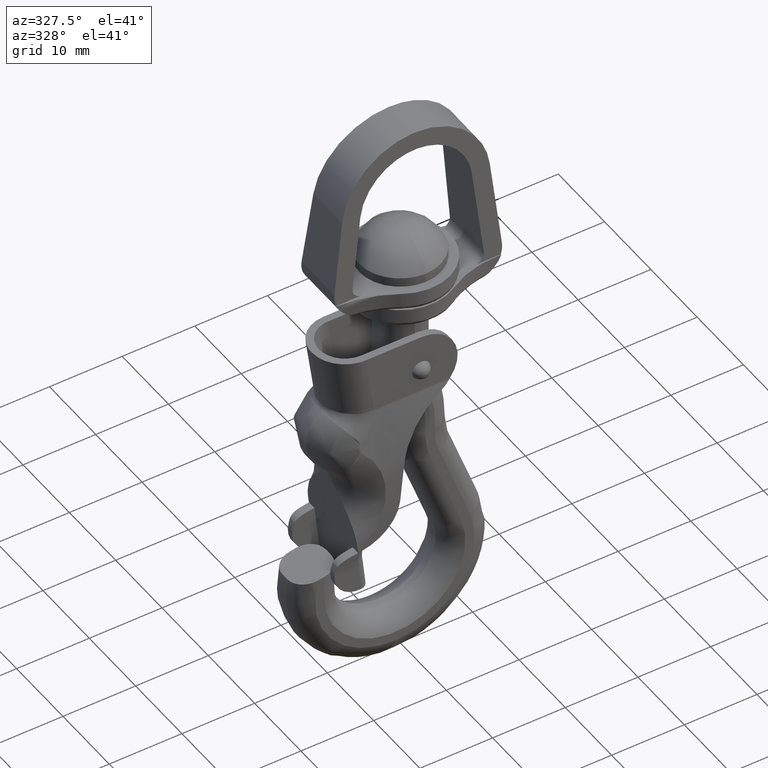
[diagram: clean part render]
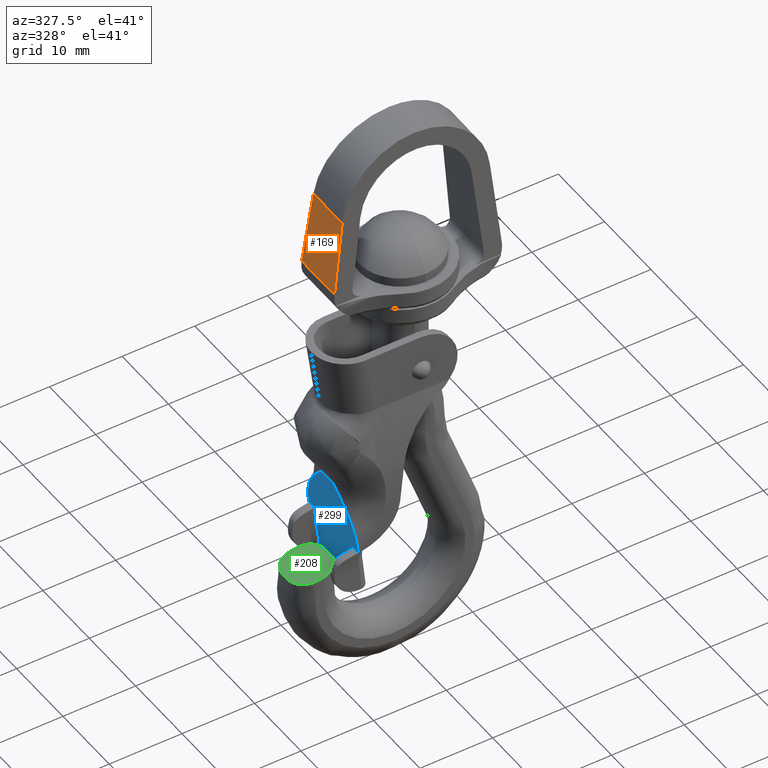
[diagram: same view with three faces highlighted in distinct colors, each labeled with its STEP entity id]
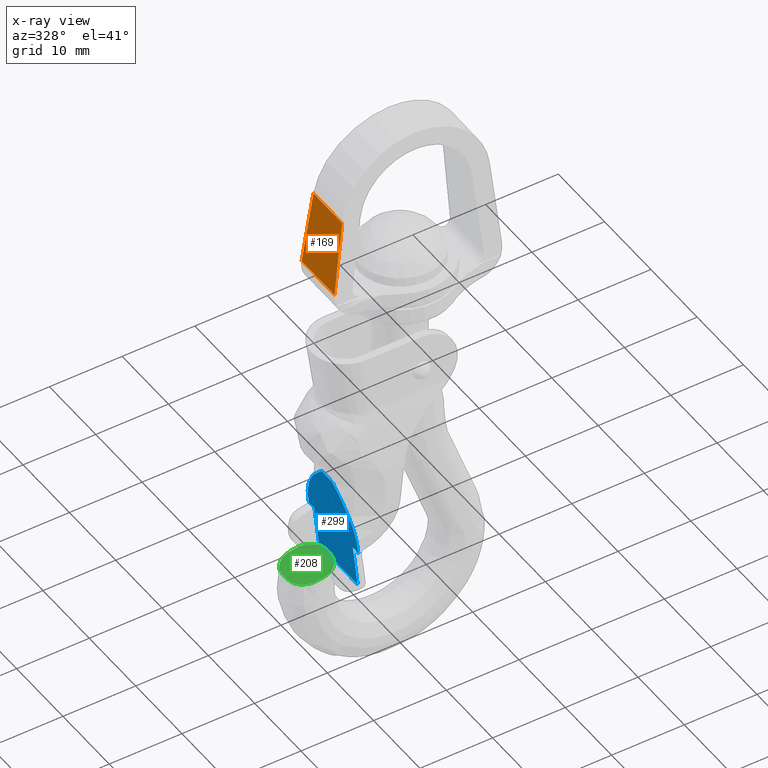
[diagram: x-ray of the same camera — body ghosted, the three highlighted faces saturated]
A machine part, auxiliary view with three faces highlighted in distinct colors.
The next image is the same camera in x-ray (body ghosted, the three faces saturated) — at least one of them is partly hidden behind the body in this view.
Their STEP definitions:

[orange] entity #169 — the highlighted planar face has unit normal (-0.9913, 0, 0.1316).
#169=ADVANCED_FACE('',(#514),#513,.T.);
#513=PLANE('',#2096);
#514=FACE_OUTER_BOUND('',#2097,.T.);
#2093=CARTESIAN_POINT('',(-1.14077956443E+01,-4.25314896025E+00,5.75841111475E+00));
#2094=DIRECTION('',(-9.91304695876E-01,0.00000000000E+00,1.31586473222E-01));
#2095=DIRECTION('',(1.31586473222E-01,0.00000000000E+00,9.91304695876E-01));
#2096=AXIS2_PLACEMENT_3D('',#2093,#2094,#2095);
#2097=EDGE_LOOP('',(#4109,#4110,#4111,#4112));
#4109=ORIENTED_EDGE('',*,*,#4898,.F.);
#4110=ORIENTED_EDGE('',*,*,#4924,.F.);
#4111=ORIENTED_EDGE('',*,*,#4909,.F.);
#4112=ORIENTED_EDGE('',*,*,#4923,.T.);
#4898=EDGE_CURVE('',#5672,#5679,#5680,.T.);
#4909=EDGE_CURVE('',#5748,#5755,#5756,.T.);
#4923=EDGE_CURVE('',#5748,#5679,#5843,.T.);
#4924=EDGE_CURVE('',#5755,#5672,#5849,.T.);
#5672=VERTEX_POINT('',#8396);
#5679=VERTEX_POINT('',#8400);
#5680=LINE('',#8401,#8402);
#5748=VERTEX_POINT('',#8441);
#5755=VERTEX_POINT('',#8445);
#5756=LINE('',#8446,#8447);
#5843=LINE('',#8502,#8503);
#5849=LINE('',#8505,#8506);
#8396=CARTESIAN_POINT('',(-1.12741993124E+01,3.54429080021E+00,6.76485705006E+00));
#8400=CARTESIAN_POINT('',(-9.93823599392E+00,3.10844591789E+00,1.68293164031E+01));
#8401=CARTESIAN_POINT('',(-1.12741993124E+01,3.54429080021E+00,6.76485705006E+00));
#8402=VECTOR('',#8403,1.01620913605E+01);
#8403=DIRECTION('',(1.31465391435E-01,-4.28892898969E-02,9.90392528075E-01));
#8441=CARTESIAN_POINT('',(-9.93823599392E+00,-3.10844591789E+00,1.68293164031E+01));
#8445=CARTESIAN_POINT('',(-1.12741993124E+01,-3.54429080021E+00,6.76485705006E+00));
#8446=CARTESIAN_POINT('',(-9.93823599392E+00,-3.10844591789E+00,1.68293164031E+01));
#8447=VECTOR('',#8448,1.01620913605E+01);
#8448=DIRECTION('',(-1.31465391435E-01,-4.28892898970E-02,-9.90392528075E-01));
#8502=CARTESIAN_POINT('',(-9.93823599392E+00,-3.10844591789E+00,1.68293164031E+01));
#8503=VECTOR('',#8504,6.21689183578E+00);
#8504=DIRECTION('',(0.00000000000E+00,1.00000000000E+00,0.00000000000E+00));
#8505=CARTESIAN_POINT('',(-1.12741993124E+01,-3.54429080021E+00,6.76485705006E+00));
#8506=VECTOR('',#8507,7.08858160042E+00);
#8507=DIRECTION('',(0.00000000000E+00,1.00000000000E+00,0.00000000000E+00));

[blue] entity #299 — the highlighted planar face has unit normal (-0.9939, 0, -0.1104).
#299=ADVANCED_FACE('',(#1819),#1818,.T.);
#1818=PLANE('',#3823);
#1819=FACE_OUTER_BOUND('',#3824,.T.);
#3820=CARTESIAN_POINT('',(-8.30834167202E+00,-6.45410401549E+00,-3.08090519360E+01));
#3821=DIRECTION('',(-9.93883734674E-01,0.00000000000E+00,-1.10431526075E-01));
#3822=DIRECTION('',(-1.10431526075E-01,0.00000000000E+00,9.93883734674E-01));
#3823=AXIS2_PLACEMENT_3D('',#3820,#3821,#3822);
#3824=EDGE_LOOP('',(#4783,#4784,#4785,#4786,#4787,#4788,#4789,#4790,#4791,#4792));
#4783=ORIENTED_EDGE('',*,*,#5247,.T.);
#4784=ORIENTED_EDGE('',*,*,#5104,.T.);
#4785=ORIENTED_EDGE('',*,*,#5101,.T.);
#4786=ORIENTED_EDGE('',*,*,#5098,.T.);
#4787=ORIENTED_EDGE('',*,*,#5253,.T.);
#4788=ORIENTED_EDGE('',*,*,#5229,.F.);
#4789=ORIENTED_EDGE('',*,*,#5163,.F.);
#4790=ORIENTED_EDGE('',*,*,#5069,.F.);
#4791=ORIENTED_EDGE('',*,*,#5164,.T.);
#4792=ORIENTED_EDGE('',*,*,#5151,.F.);
#5069=EDGE_CURVE('',#6800,#6807,#6808,.T.);
#5098=EDGE_CURVE('',#7004,#7005,#7006,.T.);
#5101=EDGE_CURVE('',#7024,#7004,#7025,.T.);
#5104=EDGE_CURVE('',#7044,#7024,#7045,.T.);
#5151=EDGE_CURVE('',#7362,#7363,#7364,.T.);
#5163=EDGE_CURVE('',#6807,#7432,#7446,.T.);
#5164=EDGE_CURVE('',#6800,#7363,#7452,.T.);
#5229=EDGE_CURVE('',#7432,#7877,#7878,.T.);
#5247=EDGE_CURVE('',#7362,#7044,#7990,.T.);
#5253=EDGE_CURVE('',#7005,#7877,#8027,.T.);
#6800=VERTEX_POINT('',#9213);
#6807=VERTEX_POINT('',#9218);
#6808=LINE('',#9219,#9220);
#7004=VERTEX_POINT('',#9412);
#7005=VERTEX_POINT('',#9413);
#7006=(BOUNDED_CURVE() B_SPLINE_CURVE(3,(#9414,#9415,#9416,#9417,#9418,#9419,#9420,#9421,#9422,#9423,#9424,#9425,#9426,#9427,#9428,#9429,#9430,#9431),.UNSPECIFIED.,.F.,.F.) B_SPLINE_CURVE_WITH_KNOTS((4,2,2,2,2,2,2,2,4),(-9.41679707937E-03,-8.82824726191E-03,-8.23969744445E-03,-7.06259780953E-03,-5.88549817460E-03,-4.70839853968E-03,-2.35419926984E-03,-1.17709963492E-03,-3.46944695195E-18),.UNSPECIFIED.) CURVE() GEOMETRIC_REPRESENTATION_ITEM() RATIONAL_B_SPLINE_CURVE((1.00000000000E+00,1.00000000000E+00,1.00000000000E+00,1.00000000000E+00,1.00000000000E+00,1.00000000000E+00,1.00000000000E+00,1.00000000000E+00,1.00000000000E+00,1.00000000000E+00,1.00000000000E+00,1.00000000000E+00,1.00000000000E+00,1.00000000000E+00,1.00000000000E+00,1.00000000000E+00,1.00000000000E+00,1.00000000000E+00)) REPRESENTATION_ITEM('') );
#7024=VERTEX_POINT('',#9460);
#7025=LINE('',#9461,#9462);
#7044=VERTEX_POINT('',#9478);
#7045=(BOUNDED_CURVE() B_SPLINE_CURVE(3,(#9479,#9480,#9481,#9482,#9483,#9484,#9485,#9486,#9487,#9488,#9489,#9490,#9491,#9492,#9493,#9494,#9495,#9496),.UNSPECIFIED.,.F.,.F.) B_SPLINE_CURVE_WITH_KNOTS((4,2,2,2,2,2,2,2,4),(2.09607435117E-17,1.17709963492E-03,2.35419926984E-03,4.70839853968E-03,5.88549817460E-03,7.06259780953E-03,8.23969744445E-03,8.82824726191E-03,9.41679707937E-03),.UNSPECIFIED.) CURVE() GEOMETRIC_REPRESENTATION_ITEM() RATIONAL_B_SPLINE_CURVE((1.00000000000E+00,1.00000000000E+00,1.00000000000E+00,1.00000000000E+00,1.00000000000E+00,1.00000000000E+00,1.00000000000E+00,1.00000000000E+00,1.00000000000E+00,1.00000000000E+00,1.00000000000E+00,1.00000000000E+00,1.00000000000E+00,1.00000000000E+00,1.00000000000E+00,1.00000000000E+00,1.00000000000E+00,1.00000000000E+00)) REPRESENTATION_ITEM('') );
#7362=VERTEX_POINT('',#9819);
#7363=VERTEX_POINT('',#9820);
#7364=LINE('',#9821,#9822);
#7432=VERTEX_POINT('',#9901);
#7446=LINE('',#9925,#9926);
#7452=LINE('',#9928,#9929);
#7877=VERTEX_POINT('',#10320);
#7878=LINE('',#10321,#10322);
#7990=(BOUNDED_CURVE() B_SPLINE_CURVE(2,(#10427,#10428,#10429),.UNSPECIFIED.,.F.,.F.) B_SPLINE_CURVE_WITH_KNOTS((3,3),(4.61377028065E+00,4.61651534686E+00),.UNSPECIFIED.) CURVE() GEOMETRIC_REPRESENTATION_ITEM() RATIONAL_B_SPLINE_CURVE((1.00000000000E+00,9.99999058077E-01,1.00000000000E+00)) REPRESENTATION_ITEM('') );
#8027=(BOUNDED_CURVE() B_SPLINE_CURVE(2,(#10470,#10471,#10472),.UNSPECIFIED.,.F.,.F.) B_SPLINE_CURVE_WITH_KNOTS((3,3),(1.66666996032E+00,1.66941502653E+00),.UNSPECIFIED.) CURVE() GEOMETRIC_REPRESENTATION_ITEM() RATIONAL_B_SPLINE_CURVE((1.00000000000E+00,9.99999058077E-01,1.00000000000E+00)) REPRESENTATION_ITEM('') );
#9213=CARTESIAN_POINT('',(-8.46733439055E+00,-4.13340352579E+00,-2.93781174692E+01));
#9218=CARTESIAN_POINT('',(-8.46733439055E+00,4.14278695040E+00,-2.93781174692E+01));
#9219=CARTESIAN_POINT('',(-8.46733439055E+00,-4.13340352579E+00,-2.93781174692E+01));
#9220=VECTOR('',#9221,8.27619047619E+00);
#9221=DIRECTION('',(0.00000000000E+00,1.00000000000E+00,0.00000000000E+00));
#9412=CARTESIAN_POINT('',(-1.00572615758E+01,1.16901623373E+00,-1.50687728018E+01));
#9413=CARTESIAN_POINT('',(-9.15937109018E+00,5.34047916499E+00,-2.31497871726E+01));
#9414=CARTESIAN_POINT('',(-1.00572615758E+01,1.16901623373E+00,-1.50687728018E+01));
#9415=CARTESIAN_POINT('',(-1.00423475810E+01,1.31131466160E+00,-1.52029987553E+01));
#9416=CARTESIAN_POINT('',(-1.00270904342E+01,1.45531307912E+00,-1.53403130768E+01));
#9417=CARTESIAN_POINT('',(-9.99654205216E+00,1.73830174198E+00,-1.56152485147E+01));
#9418=CARTESIAN_POINT('',(-9.98112782063E+00,1.87850404537E+00,-1.57539765985E+01));
#9419=CARTESIAN_POINT('',(-9.93431923876E+00,2.29389002291E+00,-1.61752538353E+01));
#9420=CARTESIAN_POINT('',(-9.90231973937E+00,2.56413272110E+00,-1.64632493299E+01));
#9421=CARTESIAN_POINT('',(-9.83626990471E+00,3.08264525835E+00,-1.70576978418E+01));
#9422=CARTESIAN_POINT('',(-9.80227911173E+00,3.33052047184E+00,-1.73636149786E+01));
#9423=CARTESIAN_POINT('',(-9.73181342134E+00,3.79700033015E+00,-1.79978061921E+01));
#9424=CARTESIAN_POINT('',(-9.69517955406E+00,4.01640560975E+00,-1.83275109976E+01));
#9425=CARTESIAN_POINT('',(-9.58233747508E+00,4.61160449634E+00,-1.93430897085E+01));
#9426=CARTESIAN_POINT('',(-9.50311798951E+00,4.92783319662E+00,-2.00560650786E+01));
#9427=CARTESIAN_POINT('',(-9.37590934171E+00,5.23303035137E+00,-2.12009429088E+01));
#9428=CARTESIAN_POINT('',(-9.33296259966E+00,5.30382784548E+00,-2.15874635873E+01));
#9429=CARTESIAN_POINT('',(-9.24667055558E+00,5.37629732186E+00,-2.23640919839E+01));
#9430=CARTESIAN_POINT('',(-9.20320718240E+00,5.37842001291E+00,-2.27552623425E+01));
#9431=CARTESIAN_POINT('',(-9.15937109018E+00,5.34047916499E+00,-2.31497871726E+01));
#9460=CARTESIAN_POINT('',(-1.00572615758E+01,-1.16901623373E+00,-1.50687728018E+01));
#9461=CARTESIAN_POINT('',(-1.00572615758E+01,-1.16901623373E+00,-1.50687728018E+01));
#9462=VECTOR('',#9463,2.33803246746E+00);
#9463=DIRECTION('',(0.00000000000E+00,1.00000000000E+00,0.00000000000E+00));
#9478=CARTESIAN_POINT('',(-9.15937109018E+00,-5.34047916500E+00,-2.31497871726E+01));
#9479=CARTESIAN_POINT('',(-9.15937109018E+00,-5.34047916500E+00,-2.31497871726E+01));
#9480=CARTESIAN_POINT('',(-9.20320718240E+00,-5.37842001291E+00,-2.27552623425E+01));
#9481=CARTESIAN_POINT('',(-9.24667055558E+00,-5.37629732186E+00,-2.23640919839E+01));
#9482=CARTESIAN_POINT('',(-9.33296259966E+00,-5.30382784548E+00,-2.15874635873E+01));
#9483=CARTESIAN_POINT('',(-9.37590934171E+00,-5.23303035137E+00,-2.12009429088E+01));
#9484=CARTESIAN_POINT('',(-9.50311798951E+00,-4.92783319662E+00,-2.00560650786E+01));
#9485=CARTESIAN_POINT('',(-9.58233747508E+00,-4.61160449634E+00,-1.93430897085E+01));
#9486=CARTESIAN_POINT('',(-9.69517955406E+00,-4.01640560975E+00,-1.83275109976E+01));
#9487=CARTESIAN_POINT('',(-9.73181342134E+00,-3.79700033015E+00,-1.79978061921E+01));
#9488=CARTESIAN_POINT('',(-9.80227911173E+00,-3.33052047184E+00,-1.73636149786E+01));
#9489=CARTESIAN_POINT('',(-9.83626990471E+00,-3.08264525835E+00,-1.70576978418E+01));
#9490=CARTESIAN_POINT('',(-9.90231973937E+00,-2.56413272110E+00,-1.64632493299E+01));
#9491=CARTESIAN_POINT('',(-9.93431923876E+00,-2.29389002291E+00,-1.61752538353E+01));
#9492=CARTESIAN_POINT('',(-9.98112782063E+00,-1.87850404537E+00,-1.57539765985E+01));
#9493=CARTESIAN_POINT('',(-9.99654205216E+00,-1.73830174198E+00,-1.56152485147E+01));
#9494=CARTESIAN_POINT('',(-1.00270904342E+01,-1.45531307912E+00,-1.53403130768E+01));
#9495=CARTESIAN_POINT('',(-1.00423475810E+01,-1.31131466160E+00,-1.52029987553E+01));
#9496=CARTESIAN_POINT('',(-1.00572615758E+01,-1.16901623373E+00,-1.50687728018E+01));
#9819=CARTESIAN_POINT('',(-9.13669485151E+00,-5.32056977000E+00,-2.33538733206E+01));
#9820=CARTESIAN_POINT('',(-9.13669485151E+00,-4.13340352579E+00,-2.33538733206E+01));
#9821=CARTESIAN_POINT('',(-9.13669485151E+00,-5.32056977000E+00,-2.33538733206E+01));
#9822=VECTOR('',#9823,1.18716624421E+00);
#9823=DIRECTION('',(0.00000000000E+00,1.00000000000E+00,0.00000000000E+00));
#9901=CARTESIAN_POINT('',(-9.13669485151E+00,4.14278695040E+00,-2.33538733206E+01));
#9925=CARTESIAN_POINT('',(-8.46733439055E+00,4.14278695040E+00,-2.93781174692E+01));
#9926=VECTOR('',#9927,6.06131677021E+00);
#9927=DIRECTION('',(-1.10431526075E-01,0.00000000000E+00,9.93883734674E-01));
#9928=CARTESIAN_POINT('',(-8.46733439055E+00,-4.13340352579E+00,-2.93781174692E+01));
#9929=VECTOR('',#9930,6.06131677021E+00);
#9930=DIRECTION('',(-1.10431526075E-01,0.00000000000E+00,9.93883734674E-01));
#10320=CARTESIAN_POINT('',(-9.13669485151E+00,5.32056977000E+00,-2.33538733206E+01));
#10321=CARTESIAN_POINT('',(-9.13669485151E+00,4.14278695040E+00,-2.33538733206E+01));
#10322=VECTOR('',#10323,1.17778281960E+00);
#10323=DIRECTION('',(0.00000000000E+00,1.00000000000E+00,0.00000000000E+00));
#10427=CARTESIAN_POINT('',(-9.13669485151E+00,-5.32056977000E+00,-2.33538733206E+01));
#10428=CARTESIAN_POINT('',(-9.14803145271E+00,-5.33066452508E+00,-2.32518439098E+01));
#10429=CARTESIAN_POINT('',(-9.15937109018E+00,-5.34047916500E+00,-2.31497871726E+01));
#10470=CARTESIAN_POINT('',(-9.15937109018E+00,5.34047916499E+00,-2.31497871726E+01));
#10471=CARTESIAN_POINT('',(-9.14803145271E+00,5.33066452508E+00,-2.32518439098E+01));
#10472=CARTESIAN_POINT('',(-9.13669485151E+00,5.32056977000E+00,-2.33538733206E+01));

[green] entity #208 — the highlighted planar face has unit normal (-0.1664, 0, 0.9861).
#208=ADVANCED_FACE('',(#904),#903,.T.);
#903=PLANE('',#2554);
#904=FACE_OUTER_BOUND('',#2555,.T.);
#2551=CARTESIAN_POINT('',(-1.64354726056E+01,-3.66000000000E+00,-2.78763877615E+01));
#2552=DIRECTION('',(-1.66400519461E-01,0.00000000000E+00,9.86058247328E-01));
#2553=DIRECTION('',(9.86058247328E-01,0.00000000000E+00,1.66400519461E-01));
#2554=AXIS2_PLACEMENT_3D('',#2551,#2552,#2553);
#2555=EDGE_LOOP('',(#4304,#4305,#4306,#4307,#4308,#4309,#4310,#4311));
#4304=ORIENTED_EDGE('',*,*,#5022,.F.);
#4305=ORIENTED_EDGE('',*,*,#4980,.T.);
#4306=ORIENTED_EDGE('',*,*,#4986,.T.);
#4307=ORIENTED_EDGE('',*,*,#4960,.T.);
#4308=ORIENTED_EDGE('',*,*,#5020,.T.);
#4309=ORIENTED_EDGE('',*,*,#5023,.T.);
#4310=ORIENTED_EDGE('',*,*,#4995,.F.);
#4311=ORIENTED_EDGE('',*,*,#4939,.T.);
#4939=EDGE_CURVE('',#5942,#5943,#5944,.T.);
#4960=EDGE_CURVE('',#6086,#6087,#6088,.T.);
#4980=EDGE_CURVE('',#6221,#6222,#6223,.T.);
#4986=EDGE_CURVE('',#6222,#6086,#6261,.T.);
#4995=EDGE_CURVE('',#5942,#6322,#6323,.T.);
#5020=EDGE_CURVE('',#6087,#6489,#6490,.T.);
#5022=EDGE_CURVE('',#6221,#5943,#6502,.T.);
#5023=EDGE_CURVE('',#6489,#6322,#6508,.T.);
#5942=VERTEX_POINT('',#8577);
#5943=VERTEX_POINT('',#8578);
#5944=(BOUNDED_CURVE() B_SPLINE_CURVE(3,(#8579,#8580,#8581,#8582,#8583,#8584,#8585,#8586,#8587,#8588,#8589,#8590,#8591,#8592),.UNSPECIFIED.,.F.,.F.) B_SPLINE_CURVE_WITH_KNOTS((4,2,2,2,2,2,4),(5.27595548005E-18,1.02409367028E-03,2.04818734057E-03,2.56023417571E-03,3.07228101085E-03,3.58432784599E-03,4.09637468113E-03),.UNSPECIFIED.) CURVE() GEOMETRIC_REPRESENTATION_ITEM() RATIONAL_B_SPLINE_CURVE((1.00000000000E+00,1.00000000000E+00,1.00000000000E+00,1.00000000000E+00,1.00000000000E+00,1.00000000000E+00,1.00000000000E+00,1.00000000000E+00,1.00000000000E+00,1.00000000000E+00,1.00000000000E+00,1.00000000000E+00,1.00000000000E+00,1.00000000000E+00)) REPRESENTATION_ITEM('') );
#6086=VERTEX_POINT('',#8707);
#6087=VERTEX_POINT('',#8708);
#6088=(BOUNDED_CURVE() B_SPLINE_CURVE(2,(#8709,#8710,#8711),.UNSPECIFIED.,.F.,.F.) B_SPLINE_CURVE_WITH_KNOTS((3,3),(4.71238898038E+00,6.28318530718E+00),.UNSPECIFIED.) CURVE() GEOMETRIC_REPRESENTATION_ITEM() RATIONAL_B_SPLINE_CURVE((1.00000000000E+00,7.07106781187E-01,1.00000000000E+00)) REPRESENTATION_ITEM('') );
#6221=VERTEX_POINT('',#8804);
#6222=VERTEX_POINT('',#8805);
#6223=(BOUNDED_CURVE() B_SPLINE_CURVE(3,(#8806,#8807,#8808,#8809,#8810,#8811,#8812,#8813,#8814,#8815,#8816,#8817,#8818,#8819,#8820,#8821),.UNSPECIFIED.,.F.,.F.) B_SPLINE_CURVE_WITH_KNOTS((4,2,2,2,2,2,2,4),(0.00000000000E+00,5.12076622366E-04,1.02415324473E-03,2.04830648946E-03,2.56038311183E-03,3.07245973420E-03,3.58453635656E-03,4.09661297893E-03),.UNSPECIFIED.) CURVE() GEOMETRIC_REPRESENTATION_ITEM() RATIONAL_B_SPLINE_CURVE((1.00000000000E+00,1.00000000000E+00,1.00000000000E+00,1.00000000000E+00,1.00000000000E+00,1.00000000000E+00,1.00000000000E+00,1.00000000000E+00,1.00000000000E+00,1.00000000000E+00,1.00000000000E+00,1.00000000000E+00,1.00000000000E+00,1.00000000000E+00,1.00000000000E+00,1.00000000000E+00)) REPRESENTATION_ITEM('') );
#6261=LINE('',#8843,#8844);
#6322=VERTEX_POINT('',#8882);
#6323=LINE('',#8883,#8884);
#6489=VERTEX_POINT('',#8982);
#6490=LINE('',#8983,#8984);
#6502=LINE('',#8989,#8990);
#6508=(BOUNDED_CURVE() B_SPLINE_CURVE(2,(#8992,#8993,#8994),.UNSPECIFIED.,.F.,.F.) B_SPLINE_CURVE_WITH_KNOTS((3,3),(3.14159265359E+00,4.71238898038E+00),.UNSPECIFIED.) CURVE() GEOMETRIC_REPRESENTATION_ITEM() RATIONAL_B_SPLINE_CURVE((1.00000000000E+00,7.07106781187E-01,1.00000000000E+00)) REPRESENTATION_ITEM('') );
#8577=CARTESIAN_POINT('',(-1.31415325735E+01,3.05000000000E+00,-2.73205247241E+01));
#8578=CARTESIAN_POINT('',(-1.58370192728E+01,5.50000000000E-01,-2.77753968254E+01));
#8579=CARTESIAN_POINT('',(-1.31415325735E+01,3.05000000000E+00,-2.73205247241E+01));
#8580=CARTESIAN_POINT('',(-1.34827275433E+01,3.05000000000E+00,-2.73781024791E+01));
#8581=CARTESIAN_POINT('',(-1.38158678099E+01,2.99406578848E+00,-2.74343209769E+01));
#8582=CARTESIAN_POINT('',(-1.44580725842E+01,2.76192944188E+00,-2.75426951103E+01));
#8583=CARTESIAN_POINT('',(-1.47512916971E+01,2.59118930688E+00,-2.75921767843E+01));
#8584=CARTESIAN_POINT('',(-1.51359627043E+01,2.24994601026E+00,-2.76570912613E+01));
#8585=CARTESIAN_POINT('',(-1.52510213052E+01,2.12521848819E+00,-2.76765077725E+01));
#8586=CARTESIAN_POINT('',(-1.54546478348E+01,1.85367004312E+00,-2.77108704081E+01));
#8587=CARTESIAN_POINT('',(-1.55441023084E+01,1.70475728423E+00,-2.77259661400E+01));
#8588=CARTESIAN_POINT('',(-1.56881494445E+01,1.39352760561E+00,-2.77502745602E+01));
#8589=CARTESIAN_POINT('',(-1.57429735852E+01,1.23207570175E+00,-2.77595263113E+01));
#8590=CARTESIAN_POINT('',(-1.58176062312E+01,8.97288444529E-01,-2.77721208118E+01));
#8591=CARTESIAN_POINT('',(-1.58370192728E+01,7.23558851340E-01,-2.77753968254E+01));
#8592=CARTESIAN_POINT('',(-1.58370192728E+01,5.50000000000E-01,-2.77753968254E+01));
#8707=CARTESIAN_POINT('',(-1.23524859458E+01,-3.05000000000E+00,-2.71873705528E+01));
#8708=CARTESIAN_POINT('',(-9.85248594577E+00,-5.50000000000E-01,-2.67654874645E+01));
#8709=CARTESIAN_POINT('',(-1.23524859458E+01,-3.05000000000E+00,-2.71873705528E+01));
#8710=CARTESIAN_POINT('',(-9.85248594577E+00,-3.05000000000E+00,-2.67654874645E+01));
#8711=CARTESIAN_POINT('',(-9.85248594577E+00,-5.50000000000E-01,-2.67654874645E+01));
#8804=CARTESIAN_POINT('',(-1.58370192728E+01,-5.50000000000E-01,-2.77753968254E+01));
#8805=CARTESIAN_POINT('',(-1.31415325735E+01,-3.05000000000E+00,-2.73205247241E+01));
#8806=CARTESIAN_POINT('',(-1.58370192728E+01,-5.50000000000E-01,-2.77753968254E+01));
#8807=CARTESIAN_POINT('',(-1.58370192728E+01,-7.23216848261E-01,-2.77753968254E+01));
#8808=CARTESIAN_POINT('',(-1.58181667948E+01,-8.93133241771E-01,-2.77722154087E+01));
#8809=CARTESIAN_POINT('',(-1.57445327206E+01,-1.22667601064E+00,-2.77597894205E+01));
#8810=CARTESIAN_POINT('',(-1.56887036492E+01,-1.39192909332E+00,-2.77503680840E+01));
#8811=CARTESIAN_POINT('',(-1.54739497999E+01,-1.85712339723E+00,-2.77141276772E+01));
#8812=CARTESIAN_POINT('',(-1.52633106978E+01,-2.13648403010E+00,-2.76785816472E+01));
#8813=CARTESIAN_POINT('',(-1.48830682504E+01,-2.47453227447E+00,-2.76144145040E+01));
#8814=CARTESIAN_POINT('',(-1.47436529186E+01,-2.57568649257E+00,-2.75908877157E+01));
#8815=CARTESIAN_POINT('',(-1.44508847413E+01,-2.74814251739E+00,-2.75414821386E+01));
#8816=CARTESIAN_POINT('',(-1.42978987924E+01,-2.81971149943E+00,-2.75156652648E+01));
#8817=CARTESIAN_POINT('',(-1.39794132877E+01,-2.93506375769E+00,-2.74619198054E+01));
#8818=CARTESIAN_POINT('',(-1.38134605150E+01,-2.97861541439E+00,-2.74339147381E+01));
#8819=CARTESIAN_POINT('',(-1.34804000107E+01,-3.03578815296E+00,-2.73777097005E+01));
#8820=CARTESIAN_POINT('',(-1.33119267848E+01,-3.05000000000E+00,-2.73492792985E+01));
#8821=CARTESIAN_POINT('',(-1.31415325735E+01,-3.05000000000E+00,-2.73205247241E+01));
#8843=CARTESIAN_POINT('',(-1.31415325735E+01,-3.05000000000E+00,-2.73205247241E+01));
#8844=VECTOR('',#8845,8.00202858086E-01);
#8845=DIRECTION('',(9.86058247328E-01,0.00000000000E+00,1.66400519461E-01));
#8882=CARTESIAN_POINT('',(-1.23524859458E+01,3.05000000000E+00,-2.71873705528E+01));
#8883=CARTESIAN_POINT('',(-1.31415325735E+01,3.05000000000E+00,-2.73205247241E+01));
#8884=VECTOR('',#8885,8.00202858086E-01);
#8885=DIRECTION('',(9.86058247328E-01,0.00000000000E+00,1.66400519461E-01));
#8982=CARTESIAN_POINT('',(-9.85248594577E+00,5.50000000000E-01,-2.67654874645E+01));
#8983=CARTESIAN_POINT('',(-9.85248594577E+00,-5.50000000000E-01,-2.67654874645E+01));
#8984=VECTOR('',#8985,1.10000000000E+00);
#8985=DIRECTION('',(0.00000000000E+00,1.00000000000E+00,0.00000000000E+00));
#8989=CARTESIAN_POINT('',(-1.58370192728E+01,-5.50000000000E-01,-2.77753968254E+01));
#8990=VECTOR('',#8991,1.10000000000E+00);
#8991=DIRECTION('',(0.00000000000E+00,1.00000000000E+00,0.00000000000E+00));
#8992=CARTESIAN_POINT('',(-9.85248594577E+00,5.50000000000E-01,-2.67654874645E+01));
#8993=CARTESIAN_POINT('',(-9.85248594577E+00,3.05000000000E+00,-2.67654874645E+01));
#8994=CARTESIAN_POINT('',(-1.23524859458E+01,3.05000000000E+00,-2.71873705528E+01));